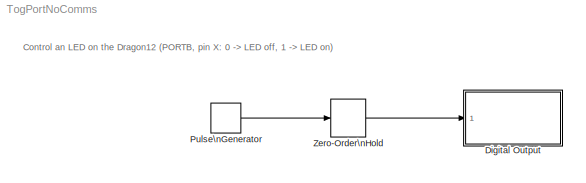
MODEL TogPortNoComms
KIND model
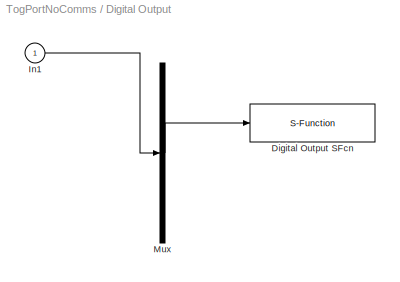
BLOCK [SubSystem] Digital Output
  Ports = [1]
  RequestExecContextInheritance = off
  SID = 1
  ShowPortLabels = none
  Tag = mcTarget_digOut
BLOCK [S-Function] Digital Output/Digital Output SFcn
  EnableBusSupport = off
  FunctionName = digOut_sfcn_9S12
  Parameters = sampletime, port, pins, Von, Voff
  Ports = [1]
  SFcnIsStateOwnerBlock = off
  SFunctionDeploymentMode = off
  SID = 1:2
  Tag = mcTarget_digOut
BLOCK [Inport] Digital Output/In1
  IconDisplay = Port number
  SID = 1:1
BLOCK [Mux] Digital Output/Mux
  DisplayOption = bar
  Inputs = 1
  Ports = [1, 1]
  SID = 1:3
BLOCK [DiscretePulseGenerator] Pulse\nGenerator
  Amplitude = 5
  Period = 1
  Ports = [0, 1]
  PulseType = Time based
  PulseWidth = 50
  SID = 2
BLOCK [ZeroOrderHold] Zero-Order\nHold
  SID = 3
  SampleTime = 0.005
ANNOTATION (root): Control an LED on the Dragon12 (PORTB, pin X: 0 -> LED off, 1 -> LED on)
LINE Digital Output/In1:1 -> Digital Output/Mux:1
LINE Digital Output/Mux:1 -> Digital Output/Digital Output SFcn:1
LINE Pulse\nGenerator:1 -> Zero-Order\nHold:1
LINE Zero-Order\nHold:1 -> Digital Output:1
